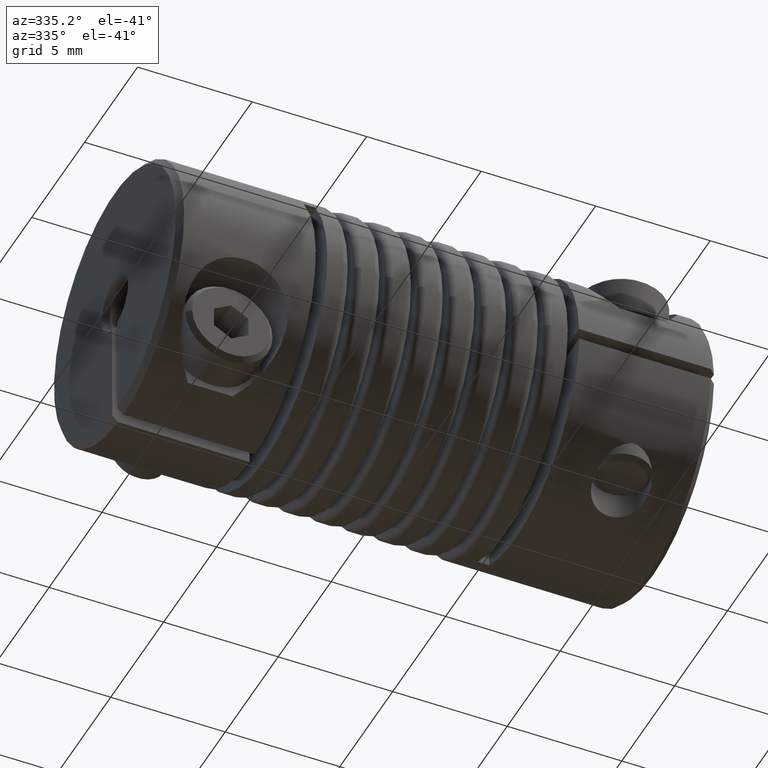
[diagram: clean part render]
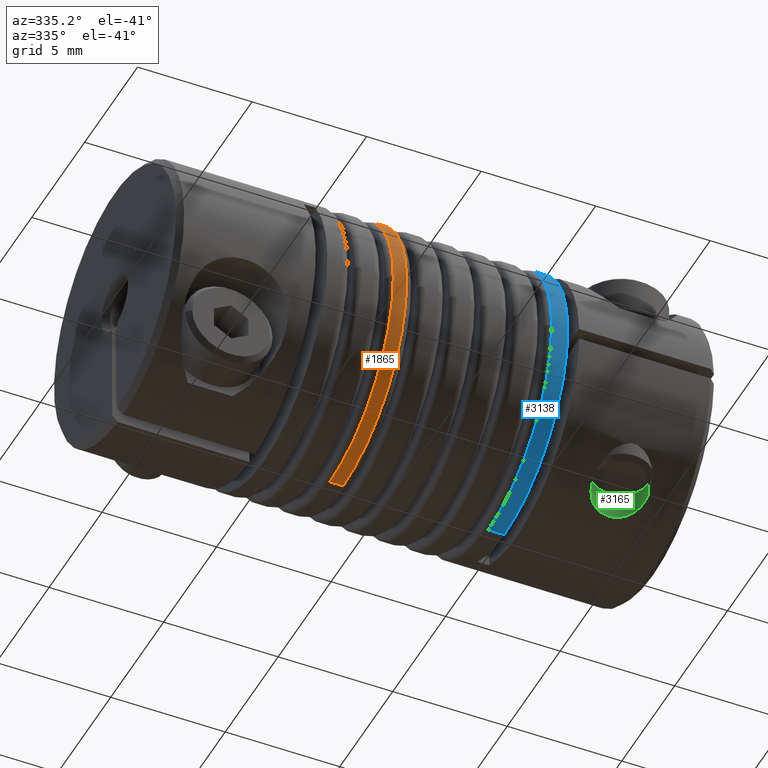
[diagram: same view with three faces highlighted in distinct colors, each labeled with its STEP entity id]
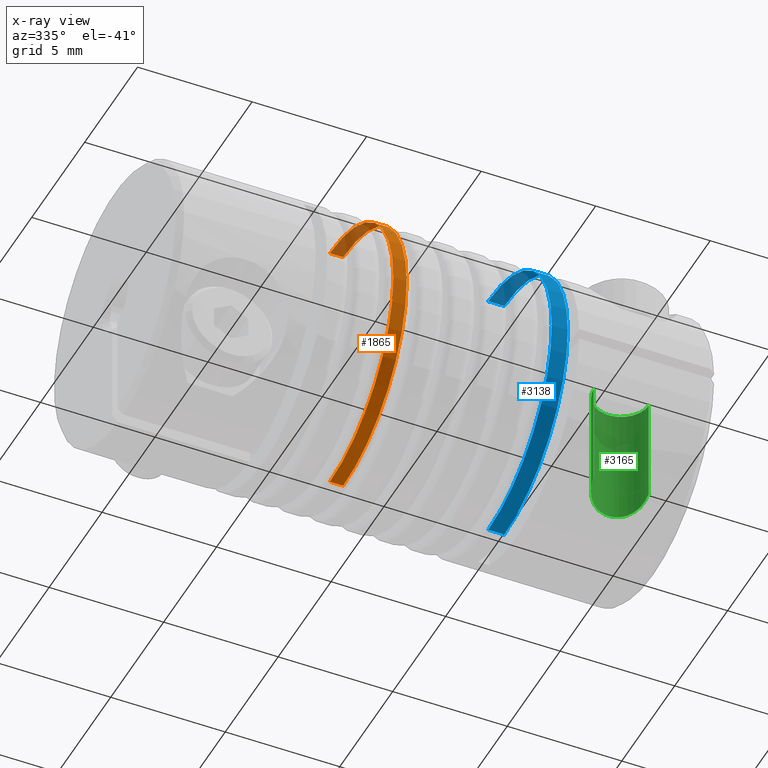
[diagram: x-ray of the same camera — body ghosted, the three highlighted faces saturated]
A machine part, auxiliary view with three faces highlighted in distinct colors.
The next image is the same camera in x-ray (body ghosted, the three faces saturated) — at least one of them is partly hidden behind the body in this view.
Their STEP definitions:

[orange] entity #1865 — the highlighted cylindrical surface (partial cylindrical patch) has radius 6 mm, axis along (-1, -0, -0).
#18 = AXIS2_PLACEMENT_3D ( 'NONE', #4898, #4909, #4910 ) ;
#22 = AXIS2_PLACEMENT_3D ( 'NONE', #4916, #4923, #4924 ) ;
#1264 = VERTEX_POINT ( 'NONE', #1518 ) ;
#1265 = VERTEX_POINT ( 'NONE', #1519 ) ;
#1268 = VERTEX_POINT ( 'NONE', #1522 ) ;
#1269 = VERTEX_POINT ( 'NONE', #1523 ) ;
#1355 = VERTEX_POINT ( 'NONE', #1609 ) ;
#1356 = VERTEX_POINT ( 'NONE', #1610 ) ;
#1518 = CARTESIAN_POINT ( 'NONE',  ( -1.783333333333334800, 0.0000000000000000000, 6.000000000000000900 ) ) ;
#1519 = CARTESIAN_POINT ( 'NONE',  ( -1.783333333333334800, -6.000000000000000900, 0.0000000000000000000 ) ) ;
#1522 = CARTESIAN_POINT ( 'NONE',  ( -2.366666666666666300, -6.000000000000000900, 7.347880794884120700E-016 ) ) ;
#1523 = CARTESIAN_POINT ( 'NONE',  ( -2.366666666666666300, 0.0000000000000000000, 6.000000000000000900 ) ) ;
#1609 = CARTESIAN_POINT ( 'NONE',  ( -1.783333333333334800, 7.347880794884120700E-016, -6.000000000000000900 ) ) ;
#1610 = CARTESIAN_POINT ( 'NONE',  ( -2.366666666666666300, 7.347880794884120700E-016, -6.000000000000000900 ) ) ;
#1865 = ADVANCED_FACE ( 'NONE', ( #4186 ), #4195, .T. ) ;
#1968 = EDGE_CURVE ( 'NONE', #1265, #1264, #4345, .T. ) ;
#1970 = EDGE_CURVE ( 'NONE', #1269, #1268, #4348, .T. ) ;
#2083 = EDGE_CURVE ( 'NONE', #1355, #1356, #5150, .T. ) ;
#2084 = EDGE_CURVE ( 'NONE', #1355, #1265, #5153, .T. ) ;
#2086 = EDGE_CURVE ( 'NONE', #1264, #1269, #5143, .T. ) ;
#2089 = EDGE_CURVE ( 'NONE', #1268, #1356, #5157, .T. ) ;
#2202 = EDGE_LOOP ( 'NONE', ( #2880, #2881, #2882, #2883, #2884, #2885 ) ) ;
#2697 = AXIS2_PLACEMENT_3D ( 'NONE', #3927, #3926, #3922 ) ;
#2750 = AXIS2_PLACEMENT_3D ( 'NONE', #4477, #4478, #4479 ) ;
#2752 = AXIS2_PLACEMENT_3D ( 'NONE', #4483, #4485, #4486 ) ;
#2880 = ORIENTED_EDGE ( 'NONE', *, *, #2083, .F. ) ;
#2881 = ORIENTED_EDGE ( 'NONE', *, *, #2084, .T. ) ;
#2882 = ORIENTED_EDGE ( 'NONE', *, *, #1968, .T. ) ;
#2883 = ORIENTED_EDGE ( 'NONE', *, *, #2086, .T. ) ;
#2884 = ORIENTED_EDGE ( 'NONE', *, *, #1970, .T. ) ;
#2885 = ORIENTED_EDGE ( 'NONE', *, *, #2089, .T. ) ;
#3922 = DIRECTION ( 'NONE',  ( 0.0000000000000000000, 0.0000000000000000000, 1.000000000000000000 ) ) ;
#3926 = DIRECTION ( 'NONE',  ( -1.000000000000000000, -0.0000000000000000000, -0.0000000000000000000 ) ) ;
#3927 = CARTESIAN_POINT ( 'NONE',  ( 11.75000000000000000, 0.0000000000000000000, 0.0000000000000000000 ) ) ;
#4186 = FACE_OUTER_BOUND ( 'NONE', #2202, .T. ) ;
#4195 = CYLINDRICAL_SURFACE ( 'NONE', #2697, 6.000000000000000900 ) ;
#4345 = CIRCLE ( 'NONE', #2750, 6.000000000000000900 ) ;
#4348 = CIRCLE ( 'NONE', #2752, 6.000000000000000900 ) ;
#4477 = CARTESIAN_POINT ( 'NONE',  ( -1.783333333333334800, 0.0000000000000000000, 0.0000000000000000000 ) ) ;
#4478 = DIRECTION ( 'NONE',  ( -1.000000000000000000, -8.701848744189147200E-018, 0.0000000000000000000 ) ) ;
#4479 = DIRECTION ( 'NONE',  ( 0.0000000000000000000, -1.000000000000000000, 0.0000000000000000000 ) ) ;
#4483 = CARTESIAN_POINT ( 'NONE',  ( -2.366666666666666300, 0.0000000000000000000, 0.0000000000000000000 ) ) ;
#4485 = DIRECTION ( 'NONE',  ( 1.000000000000000000, 8.701848744189147200E-018, -0.0000000000000000000 ) ) ;
#4486 = DIRECTION ( 'NONE',  ( 0.0000000000000000000, 1.000000000000000000, 0.0000000000000000000 ) ) ;
#4898 = CARTESIAN_POINT ( 'NONE',  ( -1.783333333333334800, 0.0000000000000000000, 0.0000000000000000000 ) ) ;
#4906 = CARTESIAN_POINT ( 'NONE',  ( 11.75000000000000000, 7.347880794884120700E-016, -6.000000000000000900 ) ) ;
#4907 = DIRECTION ( 'NONE',  ( -1.000000000000000000, -0.0000000000000000000, -0.0000000000000000000 ) ) ;
#4909 = DIRECTION ( 'NONE',  ( -1.000000000000000000, -8.701848744189147200E-018, 0.0000000000000000000 ) ) ;
#4910 = DIRECTION ( 'NONE',  ( 0.0000000000000000000, -1.000000000000000000, 0.0000000000000000000 ) ) ;
#4914 = CARTESIAN_POINT ( 'NONE',  ( 11.75000000000000000, 0.0000000000000000000, 6.000000000000000900 ) ) ;
#4915 = DIRECTION ( 'NONE',  ( -1.000000000000000000, -0.0000000000000000000, -0.0000000000000000000 ) ) ;
#4916 = CARTESIAN_POINT ( 'NONE',  ( -2.366666666666666300, 0.0000000000000000000, 0.0000000000000000000 ) ) ;
#4923 = DIRECTION ( 'NONE',  ( 1.000000000000000000, 8.701848744189147200E-018, -0.0000000000000000000 ) ) ;
#4924 = DIRECTION ( 'NONE',  ( 0.0000000000000000000, 1.000000000000000000, 0.0000000000000000000 ) ) ;
#5143 = LINE ( 'NONE', #4914, #5152 ) ;
#5150 = LINE ( 'NONE', #4906, #5151 ) ;
#5151 = VECTOR ( 'NONE', #4907, 1000.000000000000000 ) ;
#5152 = VECTOR ( 'NONE', #4915, 1000.000000000000000 ) ;
#5153 = CIRCLE ( 'NONE', #18, 6.000000000000000900 ) ;
#5157 = CIRCLE ( 'NONE', #22, 6.000000000000000900 ) ;

[blue] entity #3138 — the highlighted cylindrical surface (partial cylindrical patch) has radius 6 mm, axis along (-1, -0, -0).
#35 = AXIS2_PLACEMENT_3D ( 'NONE', #4961, #5014, #5015 ) ;
#38 = AXIS2_PLACEMENT_3D ( 'NONE', #5016, #195, #196 ) ;
#106 = AXIS2_PLACEMENT_3D ( 'NONE', #443, #442, #438 ) ;
#195 = DIRECTION ( 'NONE',  ( 1.000000000000000000, 8.701848744189147200E-018, -0.0000000000000000000 ) ) ;
#196 = DIRECTION ( 'NONE',  ( 0.0000000000000000000, 1.000000000000000000, 0.0000000000000000000 ) ) ;
#438 = DIRECTION ( 'NONE',  ( 0.0000000000000000000, 0.0000000000000000000, 1.000000000000000000 ) ) ;
#442 = DIRECTION ( 'NONE',  ( -1.000000000000000000, -0.0000000000000000000, -0.0000000000000000000 ) ) ;
#443 = CARTESIAN_POINT ( 'NONE',  ( 11.75000000000000000, 0.0000000000000000000, 0.0000000000000000000 ) ) ;
#732 = FACE_OUTER_BOUND ( 'NONE', #2203, .T. ) ;
#736 = CYLINDRICAL_SURFACE ( 'NONE', #106, 6.000000000000000900 ) ;
#1218 = VERTEX_POINT ( 'NONE', #1472 ) ;
#1219 = VERTEX_POINT ( 'NONE', #1473 ) ;
#1328 = VERTEX_POINT ( 'NONE', #1582 ) ;
#1329 = VERTEX_POINT ( 'NONE', #1583 ) ;
#1330 = VERTEX_POINT ( 'NONE', #1584 ) ;
#1472 = CARTESIAN_POINT ( 'NONE',  ( 4.549999999999999800, -6.000000000000000900, 7.347880794884120700E-016 ) ) ;
#1473 = CARTESIAN_POINT ( 'NONE',  ( 4.549999999999999800, 0.0000000000000000000, 6.000000000000000900 ) ) ;
#1582 = CARTESIAN_POINT ( 'NONE',  ( 5.250000000000001800, 7.347880794884122700E-016, -6.000000000000001800 ) ) ;
#1583 = CARTESIAN_POINT ( 'NONE',  ( 4.549999999999999800, 7.347880794884120700E-016, -6.000000000000000900 ) ) ;
#1584 = CARTESIAN_POINT ( 'NONE',  ( 5.250000000000001800, 0.0000000000000000000, 6.000000000000001800 ) ) ;
#1755 = EDGE_CURVE ( 'NONE', #1219, #1218, #3390, .T. ) ;
#2038 = EDGE_CURVE ( 'NONE', #1328, #1329, #5088, .T. ) ;
#2041 = EDGE_CURVE ( 'NONE', #1330, #1219, #5093, .T. ) ;
#2106 = EDGE_CURVE ( 'NONE', #1328, #1330, #5178, .T. ) ;
#2109 = EDGE_CURVE ( 'NONE', #1218, #1329, #5184, .T. ) ;
#2203 = EDGE_LOOP ( 'NONE', ( #2927, #2928, #2929, #2930, #2931 ) ) ;
#2591 = AXIS2_PLACEMENT_3D ( 'NONE', #3583, #3584, #3585 ) ;
#2927 = ORIENTED_EDGE ( 'NONE', *, *, #2038, .F. ) ;
#2928 = ORIENTED_EDGE ( 'NONE', *, *, #2106, .T. ) ;
#2929 = ORIENTED_EDGE ( 'NONE', *, *, #2041, .T. ) ;
#2930 = ORIENTED_EDGE ( 'NONE', *, *, #1755, .T. ) ;
#2931 = ORIENTED_EDGE ( 'NONE', *, *, #2109, .T. ) ;
#3138 = ADVANCED_FACE ( 'NONE', ( #732 ), #736, .T. ) ;
#3390 = CIRCLE ( 'NONE', #2591, 6.000000000000000900 ) ;
#3583 = CARTESIAN_POINT ( 'NONE',  ( 4.549999999999999800, 0.0000000000000000000, 0.0000000000000000000 ) ) ;
#3584 = DIRECTION ( 'NONE',  ( 1.000000000000000000, 8.701848744189147200E-018, -0.0000000000000000000 ) ) ;
#3585 = DIRECTION ( 'NONE',  ( 0.0000000000000000000, 1.000000000000000000, 0.0000000000000000000 ) ) ;
#4747 = CARTESIAN_POINT ( 'NONE',  ( 11.75000000000000000, 7.347880794884120700E-016, -6.000000000000000900 ) ) ;
#4748 = DIRECTION ( 'NONE',  ( -1.000000000000000000, -0.0000000000000000000, -0.0000000000000000000 ) ) ;
#4754 = CARTESIAN_POINT ( 'NONE',  ( 11.75000000000000000, 0.0000000000000000000, 6.000000000000000900 ) ) ;
#4755 = DIRECTION ( 'NONE',  ( -1.000000000000000000, -0.0000000000000000000, -0.0000000000000000000 ) ) ;
#4961 = CARTESIAN_POINT ( 'NONE',  ( 5.250000000000001800, 0.0000000000000000000, 0.0000000000000000000 ) ) ;
#5014 = DIRECTION ( 'NONE',  ( -1.000000000000000000, -1.020425574104004200E-016, 0.0000000000000000000 ) ) ;
#5015 = DIRECTION ( 'NONE',  ( 1.445602896647338900E-016, -1.000000000000000000, 0.0000000000000000000 ) ) ;
#5016 = CARTESIAN_POINT ( 'NONE',  ( 4.549999999999999800, 0.0000000000000000000, 0.0000000000000000000 ) ) ;
#5088 = LINE ( 'NONE', #4747, #5089 ) ;
#5089 = VECTOR ( 'NONE', #4748, 1000.000000000000000 ) ;
#5093 = LINE ( 'NONE', #4754, #5094 ) ;
#5094 = VECTOR ( 'NONE', #4755, 1000.000000000000000 ) ;
#5178 = CIRCLE ( 'NONE', #35, 6.000000000000000900 ) ;
#5184 = CIRCLE ( 'NONE', #38, 6.000000000000000900 ) ;

[green] entity #3165 — the highlighted cylindrical surface (edge-blend (fillet) strip) has radius 1.2 mm, axis along (-0, -0, 1).
#51 = AXIS2_PLACEMENT_3D ( 'NONE', #277, #284, #285 ) ;
#133 = AXIS2_PLACEMENT_3D ( 'NONE', #529, #532, #535 ) ;
#277 = CARTESIAN_POINT ( 'NONE',  ( 8.750000000000000000, -3.481517620346378500, -0.2500000000000002200 ) ) ;
#284 = DIRECTION ( 'NONE',  ( 0.0000000000000000000, 0.0000000000000000000, -1.000000000000000000 ) ) ;
#285 = DIRECTION ( 'NONE',  ( -1.000000000000000000, 0.0000000000000000000, 0.0000000000000000000 ) ) ;
#529 = CARTESIAN_POINT ( 'NONE',  ( 8.750000000000000000, -3.481517620346378500, 6.000000000000000900 ) ) ;
#532 = DIRECTION ( 'NONE',  ( -0.0000000000000000000, -0.0000000000000000000, 1.000000000000000000 ) ) ;
#535 = DIRECTION ( 'NONE',  ( 1.000000000000000000, 0.0000000000000000000, 0.0000000000000000000 ) ) ;
#777 = FACE_OUTER_BOUND ( 'NONE', #2244, .T. ) ;
#784 = CYLINDRICAL_SURFACE ( 'NONE', #133, 1.199999999999998000 ) ;
#1281 = VERTEX_POINT ( 'NONE', #1535 ) ;
#1282 = VERTEX_POINT ( 'NONE', #1536 ) ;
#1283 = VERTEX_POINT ( 'NONE', #1537 ) ;
#1284 = VERTEX_POINT ( 'NONE', #1538 ) ;
#1535 = CARTESIAN_POINT ( 'NONE',  ( 7.550000000000002500, -3.481517620346378000, -4.886617957157864300 ) ) ;
#1536 = CARTESIAN_POINT ( 'NONE',  ( 9.950000000000075700, -3.481517620346394400, -4.886617957157872300 ) ) ;
#1537 = CARTESIAN_POINT ( 'NONE',  ( 7.550000000000002500, -3.481517620346378500, -0.2500000000000002200 ) ) ;
#1538 = CARTESIAN_POINT ( 'NONE',  ( 9.949999999999999300, -3.481517620346378500, -0.2500000000000002200 ) ) ;
#1988 = EDGE_CURVE ( 'NONE', #1281, #1283, #5021, .T. ) ;
#1990 = EDGE_CURVE ( 'NONE', #1282, #1284, #4359, .T. ) ;
#2049 = EDGE_CURVE ( 'NONE', #1282, #1281, #4370, .T. ) ;
#2142 = EDGE_CURVE ( 'NONE', #1283, #1284, #5222, .T. ) ;
#2244 = EDGE_LOOP ( 'NONE', ( #3069, #3070, #3071, #3072 ) ) ;
#3069 = ORIENTED_EDGE ( 'NONE', *, *, #1988, .F. ) ;
#3070 = ORIENTED_EDGE ( 'NONE', *, *, #2049, .F. ) ;
#3071 = ORIENTED_EDGE ( 'NONE', *, *, #1990, .T. ) ;
#3072 = ORIENTED_EDGE ( 'NONE', *, *, #2142, .F. ) ;
#3165 = ADVANCED_FACE ( 'NONE', ( #777 ), #784, .F. ) ;
#4353 = VECTOR ( 'NONE', #4572, 1000.000000000000000 ) ;
#4359 = LINE ( 'NONE', #4570, #4353 ) ;
#4370 = B_SPLINE_CURVE_WITH_KNOTS ( 'NONE', 3,
 ( #4771, #4775, #4776, #4777, #4778, #4779, #4780, #4781, #4782, #4783, #4784, #4785, #4786, #4787, #4788, #4789, #4790, #4791, #4792, #4793, #4794, #4795 ),
 .UNSPECIFIED., .F., .F.,
 ( 4, 2, 2, 2, 2, 2, 2, 2, 2, 2, 4 ),
 ( 2.324545639874573600E-017, 0.0005020027249922196700, 0.0007530040874883187200, 0.001004005449984417900, 0.001506008174976617900, 0.001757009537472718600, 0.002008010899968819300, 0.002510013624961020200, 0.003012016349953220700, 0.003514019074945422000, 0.004016021799937622900 ),
 .UNSPECIFIED. ) ;
#4543 = CARTESIAN_POINT ( 'NONE',  ( 7.550000000000002500, -3.481517620346378500, 6.000000000000000900 ) ) ;
#4545 = DIRECTION ( 'NONE',  ( -0.0000000000000000000, -0.0000000000000000000, 1.000000000000000000 ) ) ;
#4570 = CARTESIAN_POINT ( 'NONE',  ( 9.949999999999999300, -3.481517620346378500, 6.000000000000000900 ) ) ;
#4572 = DIRECTION ( 'NONE',  ( -0.0000000000000000000, -0.0000000000000000000, 1.000000000000000000 ) ) ;
#4771 = CARTESIAN_POINT ( 'NONE',  ( 9.950000000000075700, -3.481517620346394400, -4.886617957157872300 ) ) ;
#4775 = CARTESIAN_POINT ( 'NONE',  ( 9.950000000000001100, -3.342714327862743600, -4.985509688162949300 ) ) ;
#4776 = CARTESIAN_POINT ( 'NONE',  ( 9.926624410581228000, -3.203543938260370100, -5.075741872641688500 ) ) ;
#4777 = CARTESIAN_POINT ( 'NONE',  ( 9.849964127714345700, -2.996226459682357100, -5.198950791535978100 ) ) ;
#4778 = CARTESIAN_POINT ( 'NONE',  ( 9.816939263728276200, -2.926982508713956000, -5.238161992037215800 ) ) ;
#4779 = CARTESIAN_POINT ( 'NONE',  ( 9.737763700335413800, -2.795812541746332400, -5.309331397883787500 ) ) ;
#4780 = CARTESIAN_POINT ( 'NONE',  ( 9.691454939155852000, -2.733152811479472100, -5.341744763371611500 ) ) ;
#4781 = CARTESIAN_POINT ( 'NONE',  ( 9.530118500330685200, -2.555793966178319100, -5.430042618071214900 ) ) ;
#4782 = CARTESIAN_POINT ( 'NONE',  ( 9.396976916596498700, -2.457036634240348200, -5.474362056882758200 ) ) ;
#4783 = CARTESIAN_POINT ( 'NONE',  ( 9.167670981850344300, -2.353428059940994000, -5.519310971909658500 ) ) ;
#4784 = CARTESIAN_POINT ( 'NONE',  ( 9.088296682036094900, -2.327112059966896400, -5.530364235896490400 ) ) ;
#4785 = CARTESIAN_POINT ( 'NONE',  ( 8.923689573489181000, -2.291169446502757400, -5.545351358456791500 ) ) ;
#4786 = CARTESIAN_POINT ( 'NONE',  ( 8.837830247858880400, -2.281758083117751300, -5.549196348582462700 ) ) ;
#4787 = CARTESIAN_POINT ( 'NONE',  ( 8.584387165249692600, -2.281050716426908000, -5.549487173520148500 ) ) ;
#4788 = CARTESIAN_POINT ( 'NONE',  ( 8.414367880641135500, -2.317386834253515100, -5.534906536840496800 ) ) ;
#4789 = CARTESIAN_POINT ( 'NONE',  ( 8.109460585655499500, -2.453140906614627700, -5.476090923590033000 ) ) ;
#4790 = CARTESIAN_POINT ( 'NONE',  ( 7.973981357242658800, -2.552298957747490600, -5.431679360180240200 ) ) ;
#4791 = CARTESIAN_POINT ( 'NONE',  ( 7.757442471298507900, -2.788349668802887000, -5.314365132921688300 ) ) ;
#4792 = CARTESIAN_POINT ( 'NONE',  ( 7.677557010072553600, -2.923160646545672800, -5.242243391180317700 ) ) ;
#4793 = CARTESIAN_POINT ( 'NONE',  ( 7.574041548215142000, -3.200415865616615300, -5.077728057408794600 ) ) ;
#4794 = CARTESIAN_POINT ( 'NONE',  ( 7.550000000000002500, -3.343863841067185500, -4.984690706505047900 ) ) ;
#4795 = CARTESIAN_POINT ( 'NONE',  ( 7.550000000000002500, -3.481517620346378000, -4.886617957157864300 ) ) ;
#5021 = LINE ( 'NONE', #4543, #5023 ) ;
#5023 = VECTOR ( 'NONE', #4545, 1000.000000000000000 ) ;
#5222 = CIRCLE ( 'NONE', #51, 1.199999999999998000 ) ;